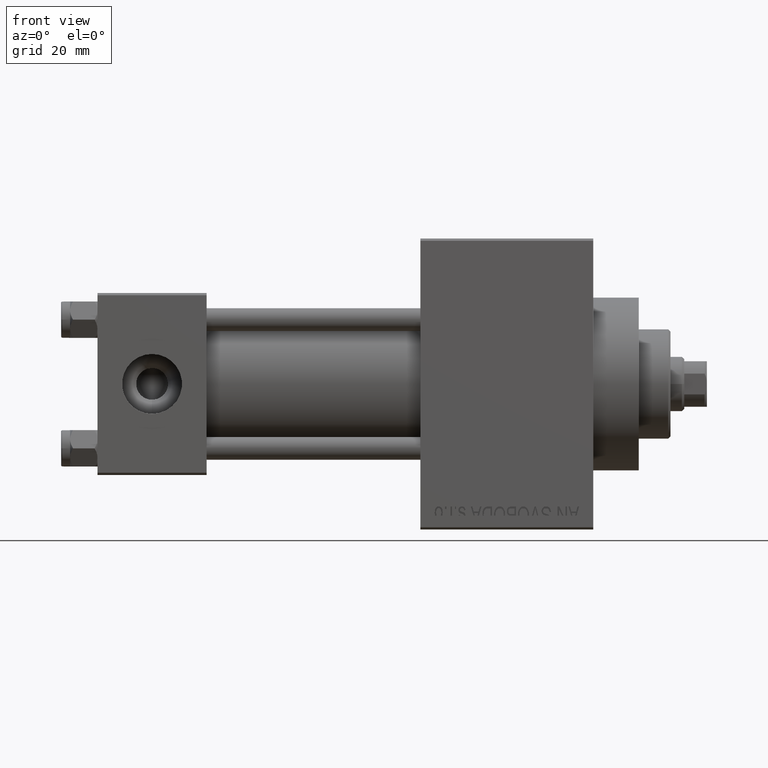
[diagram: clean part render]
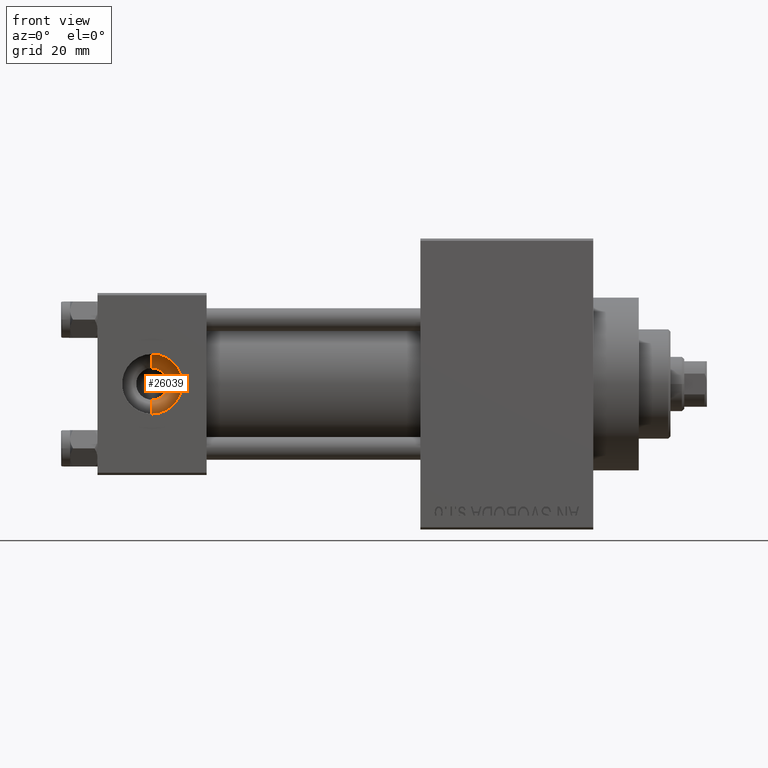
[diagram: same view with one face highlighted and labeled with its STEP entity id]
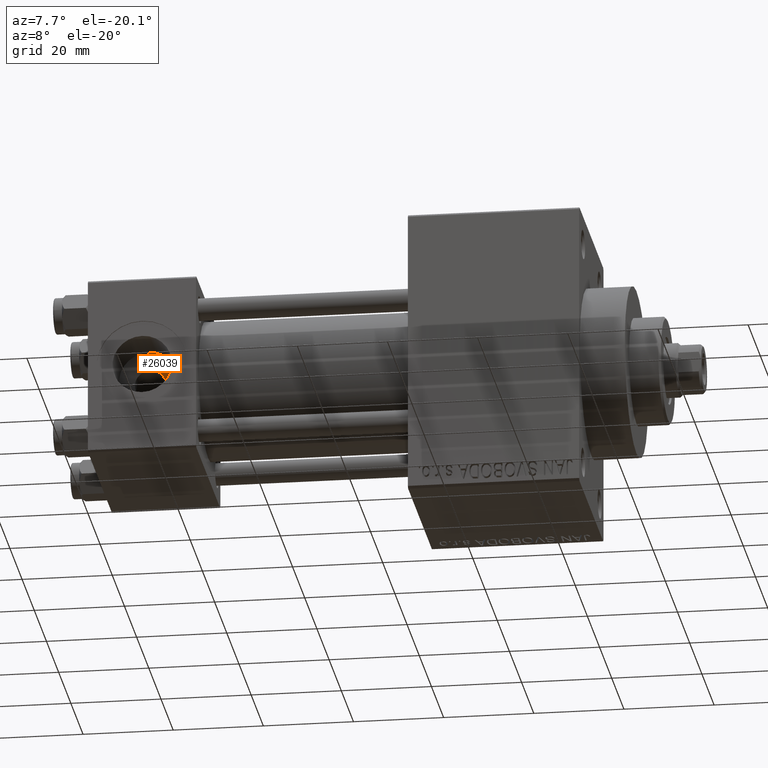
[diagram: same view with one face highlighted and labeled with its STEP entity id]
A machine part, front view. The second image highlights one B-rep face of the part: STEP entity #26039.
A second angle (auxiliary view) of the same face is appended — the face is thin or edge-on in the first view.
In plain terms, the highlighted conical surface has half-angle 45 deg.
Its self-contained STEP definition (entity closure, byte-faithful):
#2508 = CARTESIAN_POINT ( 'NONE',  ( 12.00000000000000000, -9.039999999999977831, 6.579999999999997407 ) ) ;
#3063 = CIRCLE ( 'NONE', #31945, 6.579999999999998295 ) ;
#5273 = DIRECTION ( 'NONE',  ( 0.000000000000000000, 0.000000000000000000, -1.000000000000000000 ) ) ;
#6587 = CARTESIAN_POINT ( 'NONE',  ( 12.00000000000000000, -5.959999999999951115, 3.499999999999999556 ) ) ;
#7218 = VERTEX_POINT ( 'NONE', #46844 ) ;
#8646 = LINE ( 'NONE', #30536, #36993 ) ;
#13473 = VERTEX_POINT ( 'NONE', #2508 ) ;
#16004 = ORIENTED_EDGE ( 'NONE', *, *, #21030, .F. ) ;
#16109 = DIRECTION ( 'NONE',  ( -0.000000000000000000, 1.000000000000000000, 8.673617379884039170E-17 ) ) ;
#16441 = VECTOR ( 'NONE', #31166, 1000.000000000000000 ) ;
#17271 = EDGE_CURVE ( 'NONE', #36119, #42662, #29179, .T. ) ;
#19736 = CARTESIAN_POINT ( 'NONE',  ( 12.00000000000000000, -5.959999999999951115, 3.499999999999999556 ) ) ;
#19785 = EDGE_LOOP ( 'NONE', ( #28746, #40312, #33775, #16004 ) ) ;
#20877 = CARTESIAN_POINT ( 'NONE',  ( 12.00000000000000000, -5.959999999999951115, -5.169475958410845698E-16 ) ) ;
#21030 = EDGE_CURVE ( 'NONE', #13473, #7218, #3063, .T. ) ;
#21092 = FACE_OUTER_BOUND ( 'NONE', #19785, .T. ) ;
#21321 = CARTESIAN_POINT ( 'NONE',  ( 12.00000000000000000, -5.959999999999951115, -5.169475958410845698E-16 ) ) ;
#23713 = CARTESIAN_POINT ( 'NONE',  ( 12.00000000000000000, -5.959999999999951115, -3.500000000000000444 ) ) ;
#26039 = ADVANCED_FACE ( 'NONE', ( #21092 ), #28338, .F. ) ;
#26044 = AXIS2_PLACEMENT_3D ( 'NONE', #21321, #46806, #46583 ) ;
#28338 = CONICAL_SURFACE ( 'NONE', #26044, 3.500000000000000000, 0.7853981633974433940 ) ;
#28452 = AXIS2_PLACEMENT_3D ( 'NONE', #20877, #38129, #5273 ) ;
#28746 = ORIENTED_EDGE ( 'NONE', *, *, #38843, .F. ) ;
#29179 = CIRCLE ( 'NONE', #28452, 3.500000000000000000 ) ;
#30536 = CARTESIAN_POINT ( 'NONE',  ( 12.00000000000000000, -5.959999999999951115, -3.500000000000000444 ) ) ;
#30626 = DIRECTION ( 'NONE',  ( 0.000000000000000000, 0.000000000000000000, -1.000000000000000000 ) ) ;
#31166 = DIRECTION ( 'NONE',  ( 8.659560562354892183E-17, -0.7071067811865511255, 0.7071067811865440200 ) ) ;
#31945 = AXIS2_PLACEMENT_3D ( 'NONE', #34195, #16109, #30626 ) ;
#33775 = ORIENTED_EDGE ( 'NONE', *, *, #39638, .T. ) ;
#34195 = CARTESIAN_POINT ( 'NONE',  ( 12.00000000000000000, -9.039999999999977831, -7.840950111415154262E-16 ) ) ;
#34728 = LINE ( 'NONE', #19736, #16441 ) ;
#36119 = VERTEX_POINT ( 'NONE', #23713 ) ;
#36993 = VECTOR ( 'NONE', #41716, 1000.000000000000114 ) ;
#38129 = DIRECTION ( 'NONE',  ( 0.000000000000000000, -1.000000000000000000, -8.673617379884039170E-17 ) ) ;
#38843 = EDGE_CURVE ( 'NONE', #42662, #13473, #34728, .T. ) ;
#39638 = EDGE_CURVE ( 'NONE', #36119, #7218, #8646, .T. ) ;
#40312 = ORIENTED_EDGE ( 'NONE', *, *, #17271, .F. ) ;
#41716 = DIRECTION ( 'NONE',  ( 0.000000000000000000, -0.7071067811865507924, -0.7071067811865441310 ) ) ;
#42662 = VERTEX_POINT ( 'NONE', #6587 ) ;
#46583 = DIRECTION ( 'NONE',  ( 0.000000000000000000, 0.000000000000000000, -1.000000000000000000 ) ) ;
#46806 = DIRECTION ( 'NONE',  ( 0.000000000000000000, -1.000000000000000000, -8.673617379884039170E-17 ) ) ;
#46844 = CARTESIAN_POINT ( 'NONE',  ( 12.00000000000000000, -9.039999999999977831, -6.579999999999999183 ) ) ;